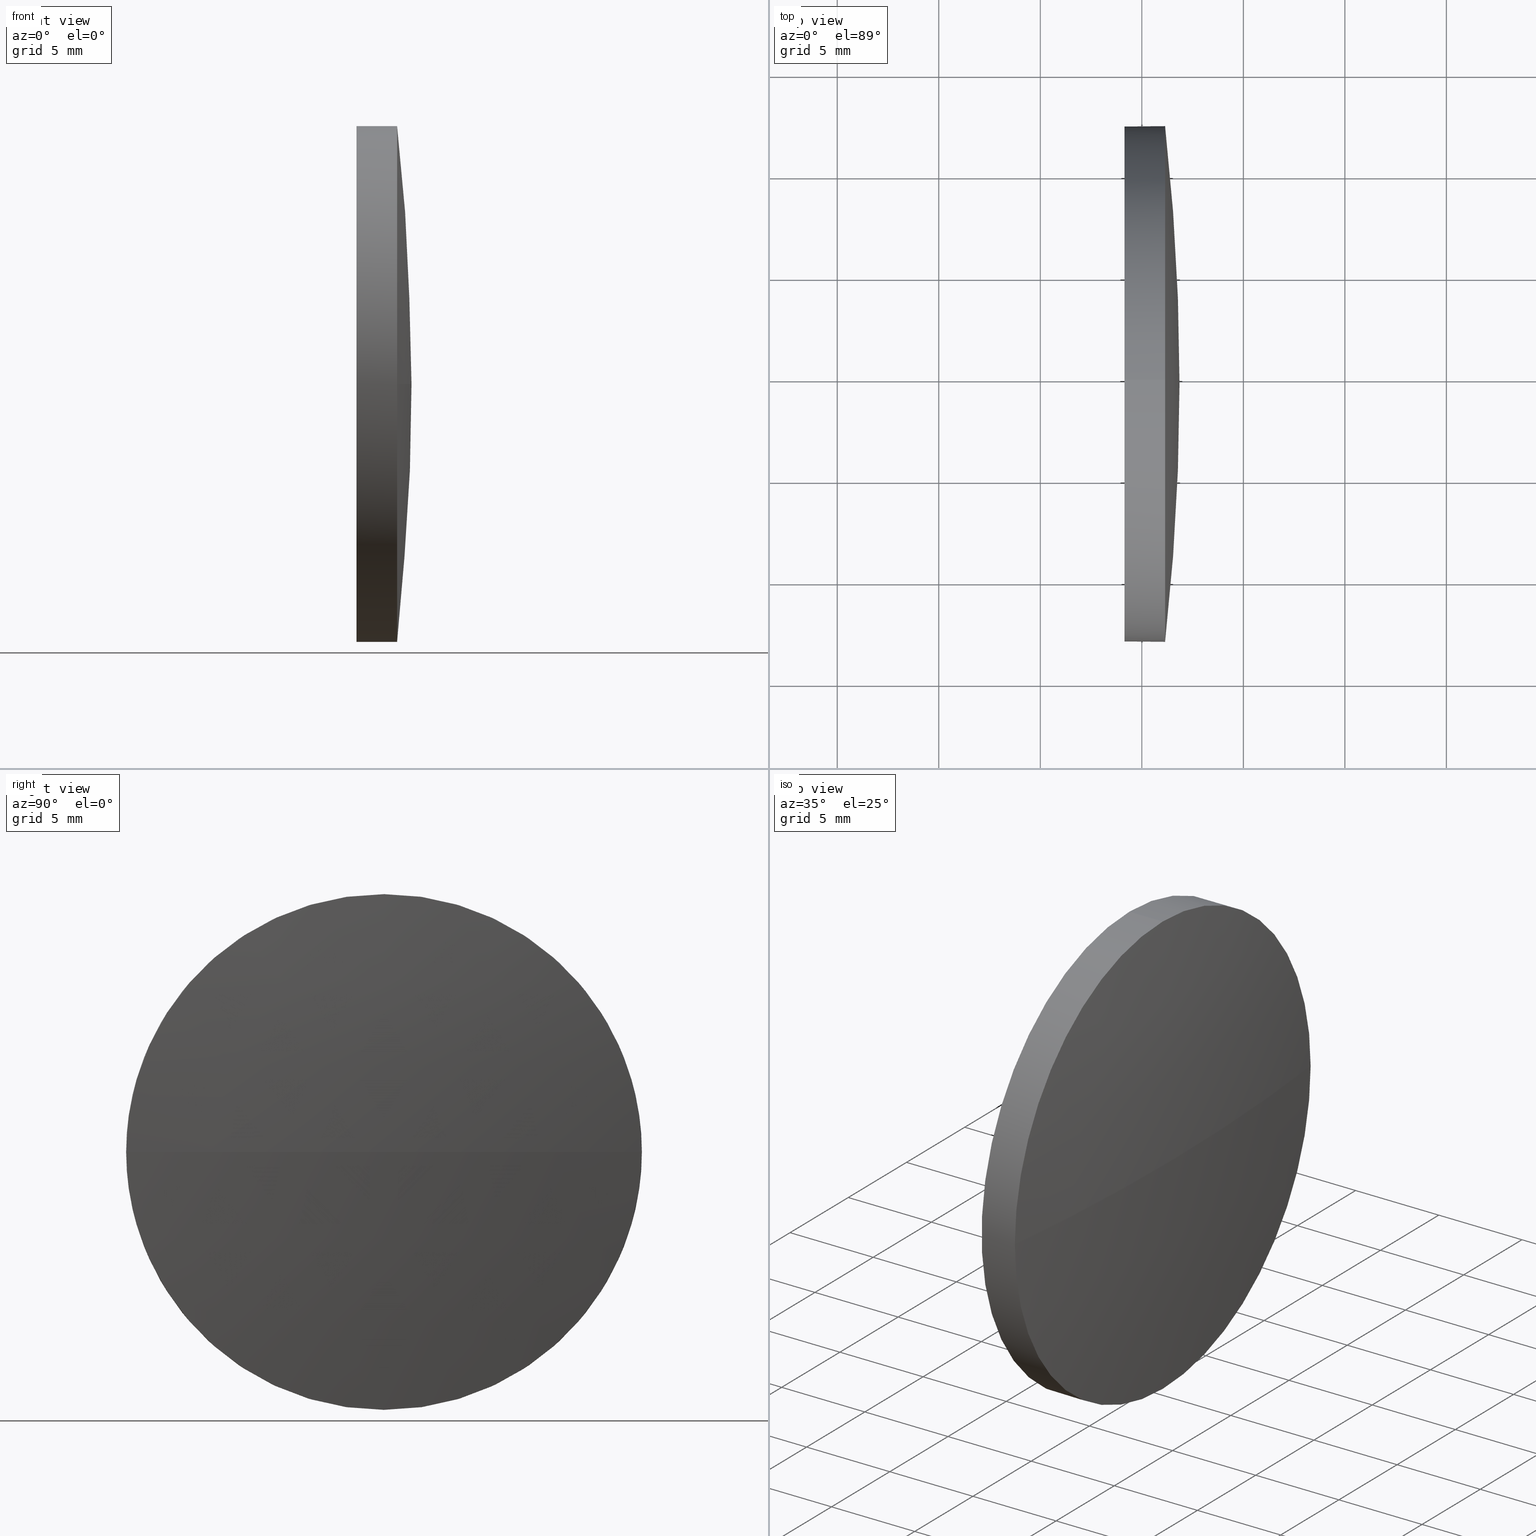
[diagram: canonical four-view strip — front | top / right | iso, engineering-drawing reading convention]
A machine part, canonical four-view strip (front | top / right | iso — engineering-drawing reading convention). The complete STEP part file that produces these views, byte-faithful:
ISO-10303-21;
HEADER;
FILE_DESCRIPTION (( 'STEP AP214' ),
    '1' );
FILE_NAME ('100380.STEP',
    '2019-06-04T08:48:04',
    ( '' ),
    ( '' ),
    'SwSTEP 2.0',
    'SolidWorks 2016',
    '' );
FILE_SCHEMA (( 'AUTOMOTIVE_DESIGN' ));
ENDSEC;

DATA;
#1 = EDGE_LOOP ( 'NONE', ( #17, #90 ) ) ;
#2 = PRESENTATION_LAYER_ASSIGNMENT (  '', '', ( #179 ) ) ;
#3 = EDGE_LOOP ( 'NONE', ( #182, #51, #154, #82, #38 ) ) ;
#4 = PRODUCT ( '100380', '100380', '', ( #15 ) ) ;
#5 =( GEOMETRIC_REPRESENTATION_CONTEXT ( 3 ) GLOBAL_UNCERTAINTY_ASSIGNED_CONTEXT ( ( #91 ) ) GLOBAL_UNIT_ASSIGNED_CONTEXT ( ( #140, #123, #107 ) ) REPRESENTATION_CONTEXT ( 'NONE', 'WORKASPACE' ) );
#6 = CARTESIAN_POINT ( 'NONE',  ( 451.1457907511151000, 24.66332668571183700, 12.70000000000000600 ) ) ;
#7 =( GEOMETRIC_REPRESENTATION_CONTEXT ( 3 ) GLOBAL_UNCERTAINTY_ASSIGNED_CONTEXT ( ( #128 ) ) GLOBAL_UNIT_ASSIGNED_CONTEXT ( ( #75, #172, #63 ) ) REPRESENTATION_CONTEXT ( 'NONE', 'WORKASPACE' ) );
#8 = CARTESIAN_POINT ( 'NONE',  ( 443.4411172036602700, 24.66332668571183700, 0.0000000000000000000 ) ) ;
#9 = DIRECTION ( 'NONE',  ( 1.000000000000000000, 0.0000000000000000000, 0.0000000000000000000 ) ) ;
#10 = EDGE_LOOP ( 'NONE', ( #125, #164, #52, #148 ) ) ;
#11 = CARTESIAN_POINT ( 'NONE',  ( 337.9162837088605900, 24.66332668571168800, 0.0000000000000000000 ) ) ;
#12 = VERTEX_POINT ( 'NONE', #115 ) ;
#13 = DIRECTION ( 'NONE',  ( -1.000000000000000000, -0.0000000000000000000, -0.0000000000000000000 ) ) ;
#14 = SURFACE_STYLE_USAGE ( .BOTH. , #184 ) ;
#15 = PRODUCT_CONTEXT ( 'NONE', #62, 'mechanical' ) ;
#16 = MECHANICAL_DESIGN_GEOMETRIC_PRESENTATION_REPRESENTATION (  '', ( #179 ), #37 ) ;
#17 = ORIENTED_EDGE ( 'NONE', *, *, #89, .T. ) ;
#18 = EDGE_CURVE ( 'NONE', #54, #12, #112, .T. ) ;
#19 = FACE_OUTER_BOUND ( 'NONE', #120, .T. ) ;
#20 = SURFACE_STYLE_FILL_AREA ( #87 ) ;
#21 = EDGE_LOOP ( 'NONE', ( #124, #163, #58, #106, #48 ) ) ;
#22 = ADVANCED_FACE ( 'NONE', ( #92 ), #147, .T. ) ;
#23 = ADVANCED_FACE ( 'NONE', ( #129 ), #177, .T. ) ;
#24 = DIRECTION ( 'NONE',  ( 0.0000000000000000000, 0.0000000000000000000, 1.000000000000000000 ) ) ;
#25 = CIRCLE ( 'NONE', #50, 12.70000000000000600 ) ;
#26 = AXIS2_PLACEMENT_3D ( 'NONE', #8, #151, #180 ) ;
#27 = CARTESIAN_POINT ( 'NONE',  ( 443.4411172036602700, 24.66332668571183700, 12.70000000000000600 ) ) ;
#28 = CARTESIAN_POINT ( 'NONE',  ( 443.4411172036602700, 24.66332668571183700, 0.0000000000000000000 ) ) ;
#29 = DIRECTION ( 'NONE',  ( 0.0000000000000000000, 0.0000000000000000000, 1.000000000000000000 ) ) ;
#30 = VERTEX_POINT ( 'NONE', #83 ) ;
#31 = EDGE_CURVE ( 'NONE', #55, #54, #72, .T. ) ;
#32 = DIRECTION ( 'NONE',  ( -0.0000000000000000000, 0.0000000000000000000, 1.000000000000000000 ) ) ;
#33 = AXIS2_PLACEMENT_3D ( 'NONE', #85, #138, #155 ) ;
#34 = SURFACE_STYLE_USAGE ( .BOTH. , #160 ) ;
#35 = CYLINDRICAL_SURFACE ( 'NONE', #127, 12.70000000000000600 ) ;
#36 = CIRCLE ( 'NONE', #99, 12.70000000000000600 ) ;
#37 =( GEOMETRIC_REPRESENTATION_CONTEXT ( 3 ) GLOBAL_UNCERTAINTY_ASSIGNED_CONTEXT ( ( #111 ) ) GLOBAL_UNIT_ASSIGNED_CONTEXT ( ( #61, #105, #168 ) ) REPRESENTATION_CONTEXT ( 'NONE', 'WORKASPACE' ) );
#38 = ORIENTED_EDGE ( 'NONE', *, *, #18, .T. ) ;
#39 = ADVANCED_FACE ( 'NONE', ( #142 ), #42, .F. ) ;
#40 = EDGE_CURVE ( 'NONE', #114, #64, #66, .T. ) ;
#41 = SURFACE_STYLE_FILL_AREA ( #139 ) ;
#42 = PLANE ( 'NONE',  #145 ) ;
#43 = CARTESIAN_POINT ( 'NONE',  ( 337.9162837088605900, 24.66332668571168800, 0.0000000000000000000 ) ) ;
#44 = PRODUCT_DEFINITION_CONTEXT ( 'detailed design', #109, 'design' ) ;
#45 = CARTESIAN_POINT ( 'NONE',  ( 0.0000000000000000000, 0.0000000000000000000, 0.0000000000000000000 ) ) ;
#46 = DIRECTION ( 'NONE',  ( 0.0000000000000000000, 0.0000000000000000000, 1.000000000000000000 ) ) ;
#47 = DIRECTION ( 'NONE',  ( 0.0000000000000000000, 0.0000000000000000000, 1.000000000000000000 ) ) ;
#48 = ORIENTED_EDGE ( 'NONE', *, *, #175, .F. ) ;
#49 = APPLICATION_PROTOCOL_DEFINITION ( 'draft international standard', 'automotive_design', 1998, #109 ) ;
#50 = AXIS2_PLACEMENT_3D ( 'NONE', #119, #96, #46 ) ;
#51 = ORIENTED_EDGE ( 'NONE', *, *, #40, .T. ) ;
#52 = ORIENTED_EDGE ( 'NONE', *, *, #80, .F. ) ;
#53 = AXIS2_PLACEMENT_3D ( 'NONE', #133, #134, #57 ) ;
#54 = VERTEX_POINT ( 'NONE', #6 ) ;
#55 = VERTEX_POINT ( 'NONE', #69 ) ;
#56 = CARTESIAN_POINT ( 'NONE',  ( 451.1457907511151000, 24.66332668571183700, 0.0000000000000000000 ) ) ;
#57 = DIRECTION ( 'NONE',  ( 0.0000000000000000000, 0.0000000000000000000, 1.000000000000000000 ) ) ;
#58 = ORIENTED_EDGE ( 'NONE', *, *, #31, .T. ) ;
#59 = CARTESIAN_POINT ( 'NONE',  ( 449.1457907511151000, 24.66332668571183700, 12.70000000000000600 ) ) ;
#60 = DIRECTION ( 'NONE',  ( -1.000000000000000000, -0.0000000000000000000, -0.0000000000000000000 ) ) ;
#61 =( LENGTH_UNIT ( ) NAMED_UNIT ( * ) SI_UNIT ( .MILLI., .METRE. ) );
#62 = APPLICATION_CONTEXT ( 'automotive_design' ) ;
#63 =( NAMED_UNIT ( * ) SI_UNIT ( $, .STERADIAN. ) SOLID_ANGLE_UNIT ( ) );
#64 = VERTEX_POINT ( 'NONE', #167 ) ;
#65 = CIRCLE ( 'NONE', #76, 12.70000000000000600 ) ;
#66 = LINE ( 'NONE', #171, #176 ) ;
#67 = PRESENTATION_STYLE_ASSIGNMENT (( #34 ) ) ;
#68 = PRESENTATION_LAYER_ASSIGNMENT (  '', '', ( #116 ) ) ;
#69 = CARTESIAN_POINT ( 'NONE',  ( 451.1457907511151000, 11.96332668571173000, -1.555301434917133100E-015 ) ) ;
#70 = COLOUR_RGB ( '',1.000000000000000000, 1.000000000000000000, 1.000000000000000000 ) ;
#71 = EDGE_CURVE ( 'NONE', #12, #114, #36, .T. ) ;
#72 = CIRCLE ( 'NONE', #166, 12.70000000000000600 ) ;
#73 = FILL_AREA_STYLE_COLOUR ( '', #70 ) ;
#74 = CARTESIAN_POINT ( 'NONE',  ( 451.1457907511151000, 24.66332668571183700, 0.0000000000000000000 ) ) ;
#75 =( LENGTH_UNIT ( ) NAMED_UNIT ( * ) SI_UNIT ( .MILLI., .METRE. ) );
#76 = AXIS2_PLACEMENT_3D ( 'NONE', #74, #135, #95 ) ;
#77 = ADVANCED_FACE ( 'NONE', ( #19 ), #161, .T. ) ;
#78 = ORIENTED_EDGE ( 'NONE', *, *, #131, .F. ) ;
#79 = CIRCLE ( 'NONE', #158, 113.9395070422545300 ) ;
#80 = EDGE_CURVE ( 'NONE', #114, #55, #65, .T. ) ;
#81 = PRODUCT_DEFINITION_SHAPE ( 'NONE', 'NONE',  #102 ) ;
#82 = ORIENTED_EDGE ( 'NONE', *, *, #156, .F. ) ;
#83 = CARTESIAN_POINT ( 'NONE',  ( 451.8557907511150800, 24.66332668571169500, 0.0000000000000000000 ) ) ;
#84 = DIRECTION ( 'NONE',  ( -1.000000000000000000, -0.0000000000000000000, -0.0000000000000000000 ) ) ;
#85 = CARTESIAN_POINT ( 'NONE',  ( 337.9162837088605900, 24.66332668571168800, 0.0000000000000000000 ) ) ;
#86 = CARTESIAN_POINT ( 'NONE',  ( 337.9162837088605900, 24.66332668571168800, 0.0000000000000000000 ) ) ;
#87 = FILL_AREA_STYLE ('',( #73 ) ) ;
#88 = ORIENTED_EDGE ( 'NONE', *, *, #31, .F. ) ;
#89 = EDGE_CURVE ( 'NONE', #169, #64, #25, .T. ) ;
#90 = ORIENTED_EDGE ( 'NONE', *, *, #175, .T. ) ;
#91 = UNCERTAINTY_MEASURE_WITH_UNIT (LENGTH_MEASURE( 1.000000000000000100E-005 ), #140, 'distance_accuracy_value', 'NONE');
#92 = FACE_OUTER_BOUND ( 'NONE', #10, .T. ) ;
#93 = DIRECTION ( 'NONE',  ( -1.000000000000000000, -0.0000000000000000000, -0.0000000000000000000 ) ) ;
#94 = DIRECTION ( 'NONE',  ( -0.0000000000000000000, 0.0000000000000000000, -1.000000000000000000 ) ) ;
#95 = DIRECTION ( 'NONE',  ( 0.0000000000000000000, 0.0000000000000000000, 1.000000000000000000 ) ) ;
#96 = DIRECTION ( 'NONE',  ( -1.000000000000000000, -0.0000000000000000000, -0.0000000000000000000 ) ) ;
#97 = DIRECTION ( 'NONE',  ( 0.0000000000000000000, 0.0000000000000000000, 1.000000000000000000 ) ) ;
#98 = COLOUR_RGB ( '',1.000000000000000000, 1.000000000000000000, 1.000000000000000000 ) ;
#99 = AXIS2_PLACEMENT_3D ( 'NONE', #153, #181, #47 ) ;
#100 = ORIENTED_EDGE ( 'NONE', *, *, #173, .T. ) ;
#101 = SHAPE_DEFINITION_REPRESENTATION ( #81, #162 ) ;
#102 = PRODUCT_DEFINITION ( 'δ֪', '', #130, #44 ) ;
#103 = DIRECTION ( 'NONE',  ( 0.0000000000000000000, 1.000000000000000000, 0.0000000000000000000 ) ) ;
#104 = FILL_AREA_STYLE_COLOUR ( '', #98 ) ;
#105 =( NAMED_UNIT ( * ) PLANE_ANGLE_UNIT ( ) SI_UNIT ( $, .RADIAN. ) );
#106 = ORIENTED_EDGE ( 'NONE', *, *, #156, .T. ) ;
#107 =( NAMED_UNIT ( * ) SI_UNIT ( $, .STERADIAN. ) SOLID_ANGLE_UNIT ( ) );
#108 = AXIS2_PLACEMENT_3D ( 'NONE', #170, #13, #141 ) ;
#109 = APPLICATION_CONTEXT ( 'automotive_design' ) ;
#110 = CLOSED_SHELL ( 'NONE', ( #113, #22, #77, #23, #39 ) ) ;
#111 = UNCERTAINTY_MEASURE_WITH_UNIT (LENGTH_MEASURE( 1.000000000000000100E-005 ), #61, 'distance_accuracy_value', 'NONE');
#112 = CIRCLE ( 'NONE', #53, 12.70000000000000600 ) ;
#113 = ADVANCED_FACE ( 'NONE', ( #146 ), #35, .T. ) ;
#114 = VERTEX_POINT ( 'NONE', #117 ) ;
#115 = CARTESIAN_POINT ( 'NONE',  ( 451.1457907511151000, 37.36332668571179700, 0.0000000000000000000 ) ) ;
#116 = STYLED_ITEM ( 'NONE', ( #67 ), #162 ) ;
#117 = CARTESIAN_POINT ( 'NONE',  ( 451.1457907511151000, 24.66332668571183700, -12.70000000000000600 ) ) ;
#118 = AXIS2_PLACEMENT_3D ( 'NONE', #45, #97, #186 ) ;
#119 = CARTESIAN_POINT ( 'NONE',  ( 449.1457907511151000, 24.66332668571183700, 0.0000000000000000000 ) ) ;
#120 = EDGE_LOOP ( 'NONE', ( #78, #100, #136, #88 ) ) ;
#121 = AXIS2_PLACEMENT_3D ( 'NONE', #43, #165, #178 ) ;
#122 = DIRECTION ( 'NONE',  ( 1.000000000000000000, 0.0000000000000000000, 0.0000000000000000000 ) ) ;
#123 =( NAMED_UNIT ( * ) PLANE_ANGLE_UNIT ( ) SI_UNIT ( $, .RADIAN. ) );
#124 = ORIENTED_EDGE ( 'NONE', *, *, #40, .F. ) ;
#125 = ORIENTED_EDGE ( 'NONE', *, *, #173, .F. ) ;
#126 = LINE ( 'NONE', #27, #137 ) ;
#127 = AXIS2_PLACEMENT_3D ( 'NONE', #28, #60, #29 ) ;
#128 = UNCERTAINTY_MEASURE_WITH_UNIT (LENGTH_MEASURE( 1.000000000000000100E-005 ), #75, 'distance_accuracy_value', 'NONE');
#129 = FACE_OUTER_BOUND ( 'NONE', #21, .T. ) ;
#130 = PRODUCT_DEFINITION_FORMATION_WITH_SPECIFIED_SOURCE ( '�κ�', '', #4, .NOT_KNOWN. ) ;
#131 = EDGE_CURVE ( 'NONE', #30, #55, #174, .T. ) ;
#132 = CARTESIAN_POINT ( 'NONE',  ( 449.1457907511151000, 24.66332668571183700, 0.0000000000000000000 ) ) ;
#133 = CARTESIAN_POINT ( 'NONE',  ( 451.1457907511151000, 24.66332668571183700, 0.0000000000000000000 ) ) ;
#134 = DIRECTION ( 'NONE',  ( -1.000000000000000000, -0.0000000000000000000, -0.0000000000000000000 ) ) ;
#135 = DIRECTION ( 'NONE',  ( -1.000000000000000000, -0.0000000000000000000, -0.0000000000000000000 ) ) ;
#136 = ORIENTED_EDGE ( 'NONE', *, *, #18, .F. ) ;
#137 = VECTOR ( 'NONE', #157, 1000.000000000000000 ) ;
#138 = DIRECTION ( 'NONE',  ( 0.0000000000000000000, 1.224646799147353200E-016, -1.000000000000000000 ) ) ;
#139 = FILL_AREA_STYLE ('',( #104 ) ) ;
#140 =( LENGTH_UNIT ( ) NAMED_UNIT ( * ) SI_UNIT ( .MILLI., .METRE. ) );
#141 = DIRECTION ( 'NONE',  ( 0.0000000000000000000, 0.0000000000000000000, 1.000000000000000000 ) ) ;
#142 = FACE_OUTER_BOUND ( 'NONE', #1, .T. ) ;
#143 = CIRCLE ( 'NONE', #108, 12.70000000000000600 ) ;
#144 = PRODUCT_RELATED_PRODUCT_CATEGORY ( 'part', '', ( #4 ) ) ;
#145 = AXIS2_PLACEMENT_3D ( 'NONE', #132, #9, #149 ) ;
#146 = FACE_OUTER_BOUND ( 'NONE', #3, .T. ) ;
#147 = SPHERICAL_SURFACE ( 'NONE', #121, 113.9395070422545500 ) ;
#148 = ORIENTED_EDGE ( 'NONE', *, *, #71, .F. ) ;
#149 = DIRECTION ( 'NONE',  ( 0.0000000000000000000, 0.0000000000000000000, -1.000000000000000000 ) ) ;
#150 = MECHANICAL_DESIGN_GEOMETRIC_PRESENTATION_REPRESENTATION (  '', ( #116 ), #5 ) ;
#151 = DIRECTION ( 'NONE',  ( -1.000000000000000000, -0.0000000000000000000, -0.0000000000000000000 ) ) ;
#152 = MANIFOLD_SOLID_BREP ( '��ת1', #110 ) ;
#153 = CARTESIAN_POINT ( 'NONE',  ( 451.1457907511151000, 24.66332668571183700, 0.0000000000000000000 ) ) ;
#154 = ORIENTED_EDGE ( 'NONE', *, *, #89, .F. ) ;
#155 = DIRECTION ( 'NONE',  ( 0.0000000000000000000, 1.000000000000000000, 1.224646799147353500E-016 ) ) ;
#156 = EDGE_CURVE ( 'NONE', #54, #169, #126, .T. ) ;
#157 = DIRECTION ( 'NONE',  ( -1.000000000000000000, -0.0000000000000000000, -0.0000000000000000000 ) ) ;
#158 = AXIS2_PLACEMENT_3D ( 'NONE', #86, #32, #122 ) ;
#159 = APPLICATION_PROTOCOL_DEFINITION ( 'draft international standard', 'automotive_design', 1998, #62 ) ;
#160 = SURFACE_SIDE_STYLE ('',( #20 ) ) ;
#161 = SPHERICAL_SURFACE ( 'NONE', #183, 113.9395070422545500 ) ;
#162 = ADVANCED_BREP_SHAPE_REPRESENTATION ( '100380', ( #152, #118 ), #7 ) ;
#163 = ORIENTED_EDGE ( 'NONE', *, *, #80, .T. ) ;
#164 = ORIENTED_EDGE ( 'NONE', *, *, #131, .T. ) ;
#165 = DIRECTION ( 'NONE',  ( -0.0000000000000000000, 0.0000000000000000000, -1.000000000000000000 ) ) ;
#166 = AXIS2_PLACEMENT_3D ( 'NONE', #56, #93, #24 ) ;
#167 = CARTESIAN_POINT ( 'NONE',  ( 449.1457907511151000, 24.66332668571183700, -12.70000000000000600 ) ) ;
#168 =( NAMED_UNIT ( * ) SI_UNIT ( $, .STERADIAN. ) SOLID_ANGLE_UNIT ( ) );
#169 = VERTEX_POINT ( 'NONE', #59 ) ;
#170 = CARTESIAN_POINT ( 'NONE',  ( 449.1457907511151000, 24.66332668571183700, 0.0000000000000000000 ) ) ;
#171 = CARTESIAN_POINT ( 'NONE',  ( 443.4411172036602700, 24.66332668571183700, -12.70000000000000600 ) ) ;
#172 =( NAMED_UNIT ( * ) PLANE_ANGLE_UNIT ( ) SI_UNIT ( $, .RADIAN. ) );
#173 = EDGE_CURVE ( 'NONE', #30, #12, #79, .T. ) ;
#174 = CIRCLE ( 'NONE', #33, 113.9395070422545300 ) ;
#175 = EDGE_CURVE ( 'NONE', #64, #169, #143, .T. ) ;
#176 = VECTOR ( 'NONE', #84, 1000.000000000000000 ) ;
#177 = CYLINDRICAL_SURFACE ( 'NONE', #26, 12.70000000000000600 ) ;
#178 = DIRECTION ( 'NONE',  ( 0.0000000000000000000, 1.000000000000000000, 0.0000000000000000000 ) ) ;
#179 = STYLED_ITEM ( 'NONE', ( #185 ), #152 ) ;
#180 = DIRECTION ( 'NONE',  ( 0.0000000000000000000, 0.0000000000000000000, 1.000000000000000000 ) ) ;
#181 = DIRECTION ( 'NONE',  ( -1.000000000000000000, -0.0000000000000000000, -0.0000000000000000000 ) ) ;
#182 = ORIENTED_EDGE ( 'NONE', *, *, #71, .T. ) ;
#183 = AXIS2_PLACEMENT_3D ( 'NONE', #11, #94, #103 ) ;
#184 = SURFACE_SIDE_STYLE ('',( #41 ) ) ;
#185 = PRESENTATION_STYLE_ASSIGNMENT (( #14 ) ) ;
#186 = DIRECTION ( 'NONE',  ( 1.000000000000000000, 0.0000000000000000000, 0.0000000000000000000 ) ) ;
ENDSEC;
END-ISO-10303-21;
